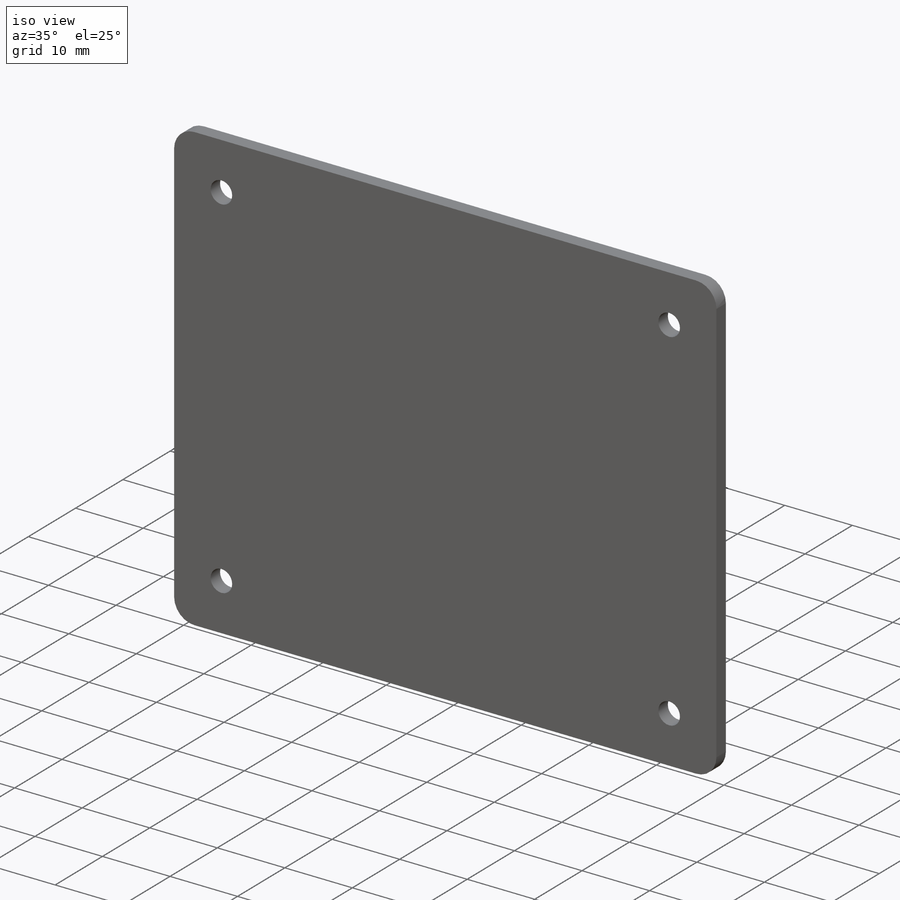
[diagram: iso view]
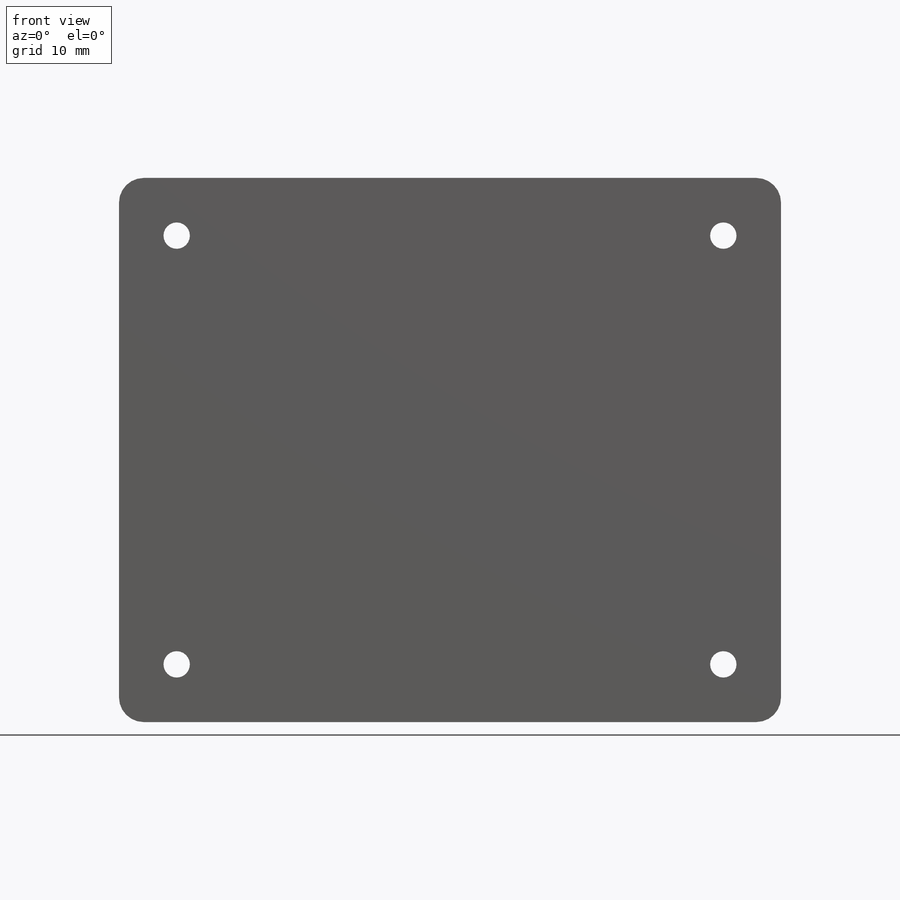
[diagram: front view]
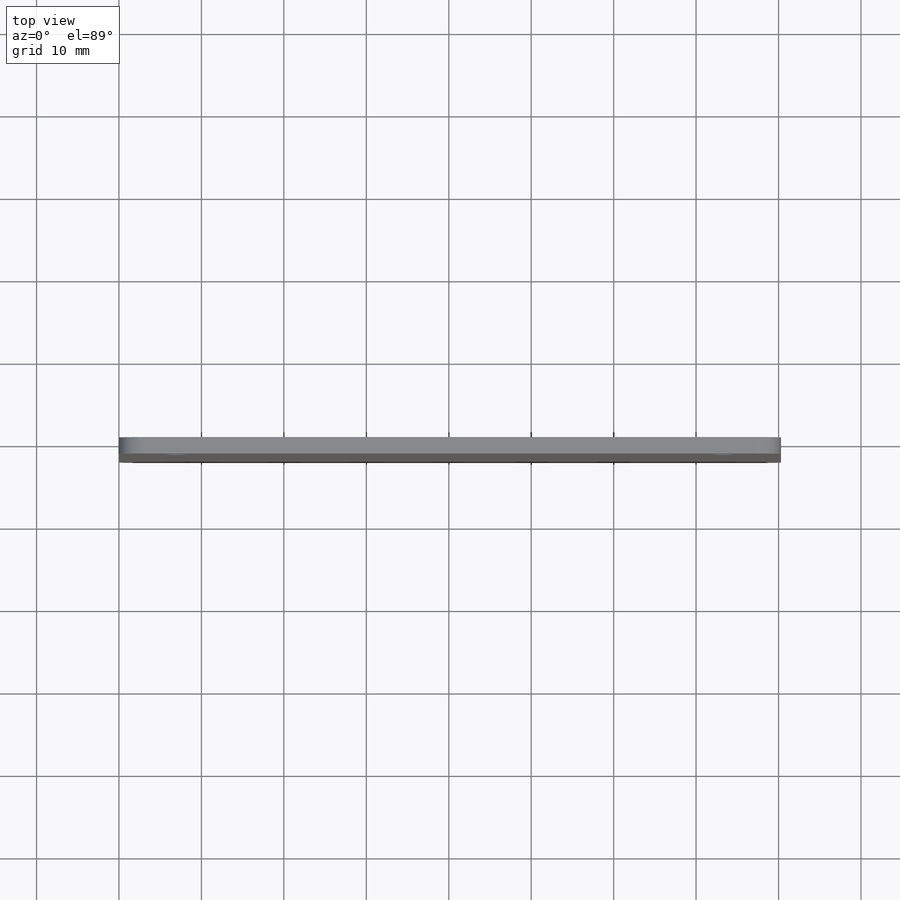
[diagram: top view]
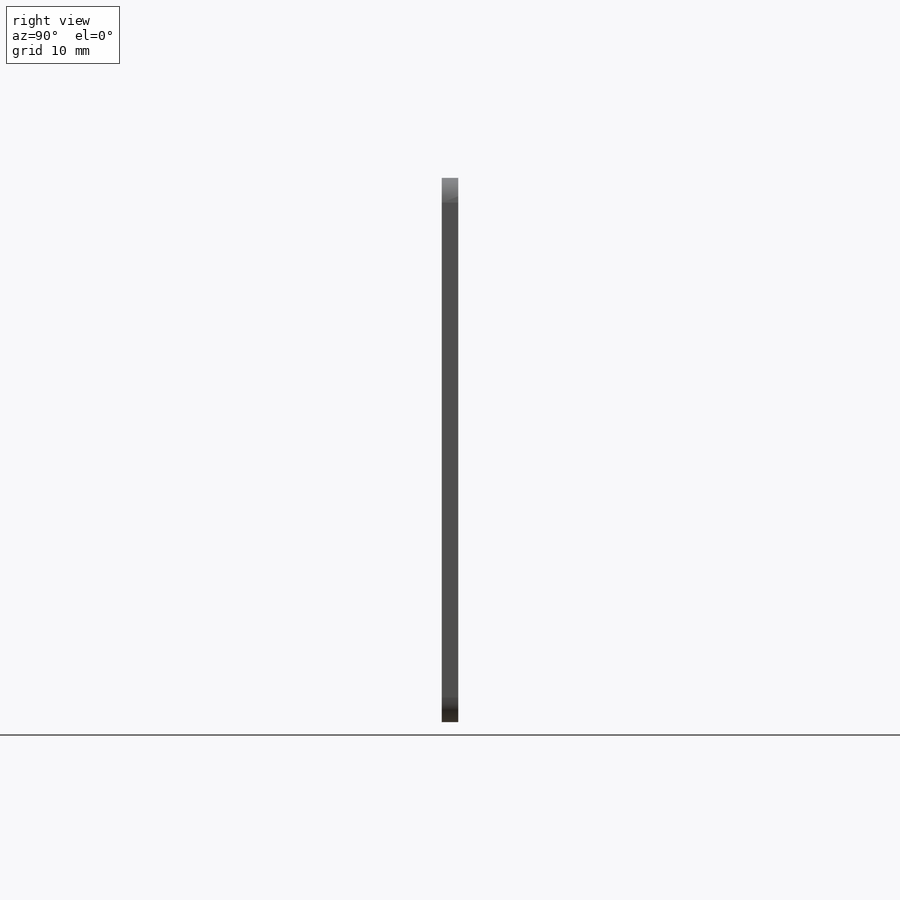
[diagram: right view]
SOLIDWORKS PART (.sldprt)
format: sldprt  version: not decoded by parser v0  size: 166,912 bytes
history: native  units: mm
features: sketch x3, material x1, extrude x1, hole x1, fillet x1 (+12 scaffold rows collapsed)
feature tree (19):
  scaffold x12  (default folders/planes/origin — collapsed)
  material  "Acrylic (Medium-high impact)"
  sketch  "Sketch1"  dims[D1=80.3mm D2=66.0mm]
  extrude  "Boss-Extrude1"  Depth=2mm
  hole  "Ø3.2 (3.2) Diameter Hole1"  Diameter=3.2mm Depth=2mm
  sketch  "Sketch3"  dims[D1=66.3mm D2=52.0mm D3=26.0mm D4=33.15mm]
  sketch  "Sketch2"  dims[hole-wizard template sketch: 61 standard entries collapsed; hole parameters above]
  fillet  "Fillet1"  Radius=3mm
decode coverage: 6 of 6 modeling features carry decoded parameters
note: ~ marks probable driven/reference dimensions
note: suppression state not decoded; provenance and decode notes live in map.json
